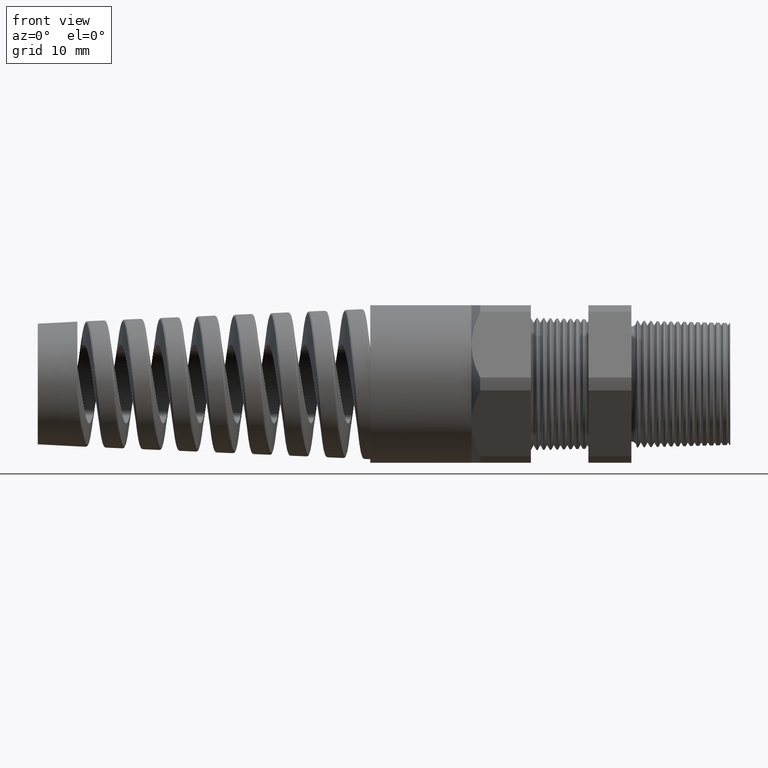
[diagram: clean part render]
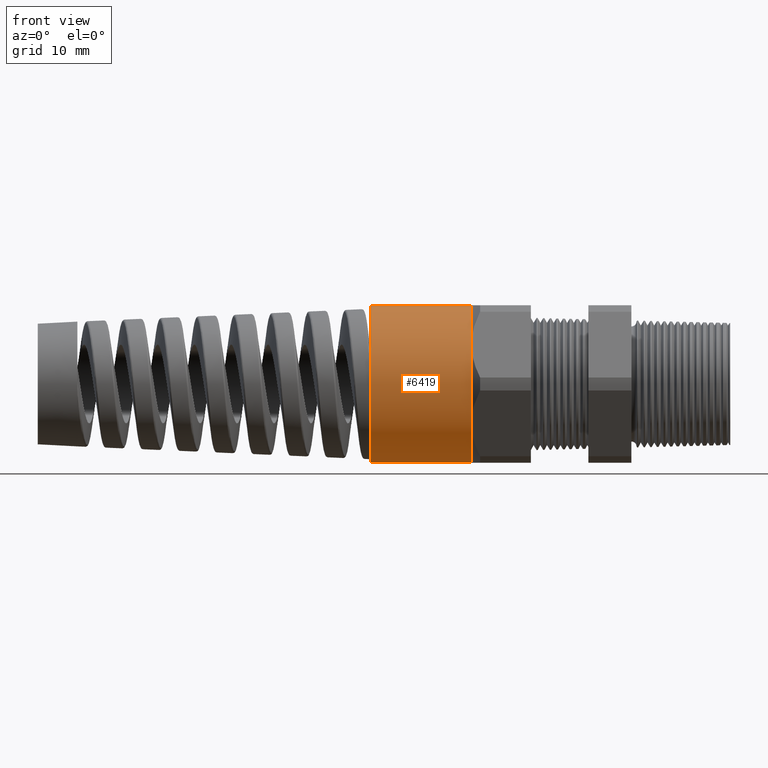
[diagram: same view with one face highlighted and labeled with its STEP entity id]
A machine part, front view. The second image highlights one B-rep face of the part: STEP entity #6419.
In plain terms, the highlighted cylindrical surface (partial cylindrical patch) has radius 11.938 mm, axis along (1, 0, 0).
Its self-contained STEP definition (entity closure, byte-faithful):
#127 = DIRECTION ( 'NONE',  ( 0.0000000000000000000, 0.0000000000000000000, -1.000000000000000000 ) ) ;
#128 = DIRECTION ( 'NONE',  ( 1.000000000000000000, 0.0000000000000000000, 0.0000000000000000000 ) ) ;
#129 = CARTESIAN_POINT ( 'NONE',  ( -1.263700787401574400, 0.0000000000000000000, 0.0000000000000000000 ) ) ;
#130 = AXIS2_PLACEMENT_3D ( 'NONE', #129, #128, #127 ) ;
#132 = CIRCLE ( 'NONE', #130, 0.4699999999999999200 ) ;
#138 = DIRECTION ( 'NONE',  ( 0.0000000000000000000, 0.0000000000000000000, -1.000000000000000000 ) ) ;
#140 = DIRECTION ( 'NONE',  ( 1.000000000000000000, 0.0000000000000000000, 0.0000000000000000000 ) ) ;
#141 = CARTESIAN_POINT ( 'NONE',  ( -1.263700787401574400, 0.0000000000000000000, 0.0000000000000000000 ) ) ;
#142 = AXIS2_PLACEMENT_3D ( 'NONE', #141, #140, #138 ) ;
#143 = CIRCLE ( 'NONE', #142, 0.4699999999999999200 ) ;
#190 = CIRCLE ( 'NONE', #315, 0.4699999999999997500 ) ;
#218 = DIRECTION ( 'NONE',  ( 0.0000000000000000000, 0.0000000000000000000, -1.000000000000000000 ) ) ;
#220 = DIRECTION ( 'NONE',  ( 1.000000000000000000, 0.0000000000000000000, 0.0000000000000000000 ) ) ;
#222 = CARTESIAN_POINT ( 'NONE',  ( -1.263700787401574400, 0.0000000000000000000, 0.0000000000000000000 ) ) ;
#224 = AXIS2_PLACEMENT_3D ( 'NONE', #222, #220, #218 ) ;
#226 = CIRCLE ( 'NONE', #224, 0.4699999999999999200 ) ;
#309 = DIRECTION ( 'NONE',  ( 0.0000000000000000000, 0.0000000000000000000, 1.000000000000000000 ) ) ;
#311 = DIRECTION ( 'NONE',  ( -1.000000000000000000, 0.0000000000000000000, 0.0000000000000000000 ) ) ;
#313 = CARTESIAN_POINT ( 'NONE',  ( -1.866920391036122300, 0.0000000000000000000, 0.0000000000000000000 ) ) ;
#315 = AXIS2_PLACEMENT_3D ( 'NONE', #313, #311, #309 ) ;
#1270 = DIRECTION ( 'NONE',  ( 0.0000000000000000000, 0.0000000000000000000, -1.000000000000000000 ) ) ;
#1271 = DIRECTION ( 'NONE',  ( 1.000000000000000000, 0.0000000000000000000, 0.0000000000000000000 ) ) ;
#1272 = AXIS2_PLACEMENT_3D ( 'NONE', #1274, #1271, #1270 ) ;
#1274 = CARTESIAN_POINT ( 'NONE',  ( 1.326736918405036800, 0.0000000000000000000, 0.0000000000000000000 ) ) ;
#1275 = CYLINDRICAL_SURFACE ( 'NONE', #1272, 0.4699999999999999200 ) ;
#1276 = FACE_OUTER_BOUND ( 'NONE', #6392, .T. ) ;
#5607 = DIRECTION ( 'NONE',  ( 1.000000000000000000, 0.0000000000000000000, 0.0000000000000000000 ) ) ;
#5608 = VECTOR ( 'NONE', #5607, 39.37007874015748100 ) ;
#5609 = CARTESIAN_POINT ( 'NONE',  ( 1.326736918405036800, 0.0000000000000000000, -0.4699999999999999200 ) ) ;
#5610 = LINE ( 'NONE', #5609, #5608 ) ;
#5656 = CARTESIAN_POINT ( 'NONE',  ( -1.866920391036122300, 0.0000000000000000000, -0.4699999999999997500 ) ) ;
#5657 = CARTESIAN_POINT ( 'NONE',  ( -1.866920391036122300, 5.755839955992558400E-017, 0.4699999999999997500 ) ) ;
#5709 = CARTESIAN_POINT ( 'NONE',  ( -1.263700787401574700, 0.0000000000000000000, -0.4700000000000000800 ) ) ;
#5727 = CARTESIAN_POINT ( 'NONE',  ( -1.263700787401574700, 0.0000000000000000000, 0.4699999999999997500 ) ) ;
#5728 = DIRECTION ( 'NONE',  ( 1.000000000000000000, 0.0000000000000000000, 0.0000000000000000000 ) ) ;
#5729 = VECTOR ( 'NONE', #5728, 39.37007874015748100 ) ;
#5730 = CARTESIAN_POINT ( 'NONE',  ( 1.326736918405036800, 5.755839955992558400E-017, 0.4699999999999999200 ) ) ;
#5731 = LINE ( 'NONE', #5730, #5729 ) ;
#5940 = VERTEX_POINT ( 'NONE', #16171 ) ;
#5987 = VERTEX_POINT ( 'NONE', #16493 ) ;
#6105 = ORIENTED_EDGE ( 'NONE', *, *, #14232, .T. ) ;
#6106 = ORIENTED_EDGE ( 'NONE', *, *, #6118, .F. ) ;
#6118 = EDGE_CURVE ( 'NONE', #5987, #5940, #143, .T. ) ;
#6119 = EDGE_CURVE ( 'NONE', #14294, #5987, #132, .T. ) ;
#6124 = ORIENTED_EDGE ( 'NONE', *, *, #6119, .F. ) ;
#6130 = ORIENTED_EDGE ( 'NONE', *, *, #6131, .F. ) ;
#6131 = EDGE_CURVE ( 'NONE', #5940, #14303, #226, .T. ) ;
#6137 = EDGE_CURVE ( 'NONE', #14247, #14246, #190, .T. ) ;
#6392 = EDGE_LOOP ( 'NONE', ( #6393, #6394, #6105, #6130, #6106, #6124 ) ) ;
#6393 = ORIENTED_EDGE ( 'NONE', *, *, #14293, .F. ) ;
#6394 = ORIENTED_EDGE ( 'NONE', *, *, #6137, .F. ) ;
#6419 = ADVANCED_FACE ( 'NONE', ( #1276 ), #1275, .T. ) ;
#14232 = EDGE_CURVE ( 'NONE', #14247, #14303, #5610, .T. ) ;
#14246 = VERTEX_POINT ( 'NONE', #5657 ) ;
#14247 = VERTEX_POINT ( 'NONE', #5656 ) ;
#14293 = EDGE_CURVE ( 'NONE', #14246, #14294, #5731, .T. ) ;
#14294 = VERTEX_POINT ( 'NONE', #5727 ) ;
#14303 = VERTEX_POINT ( 'NONE', #5709 ) ;
#16171 = CARTESIAN_POINT ( 'NONE',  ( -1.263700787401574400, -0.4070319397786861200, -0.2350000000000000400 ) ) ;
#16493 = CARTESIAN_POINT ( 'NONE',  ( -1.263700787401574700, -0.4070319397786862400, 0.2349999999999998500 ) ) ;